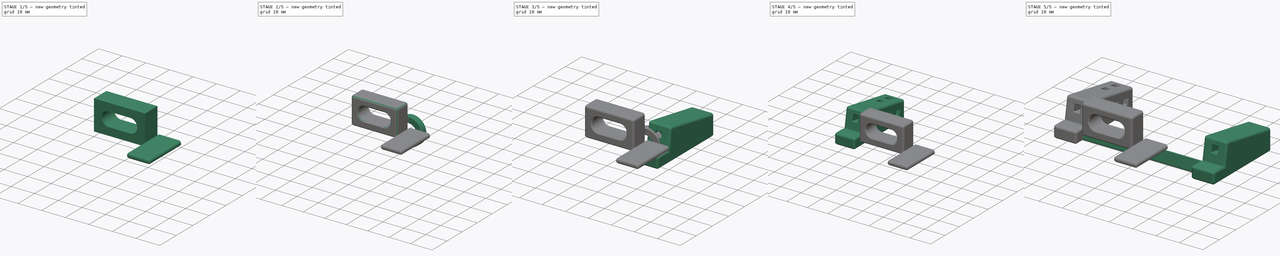
[diagram: build sequence overview — one tinted view per stage of 5, left to right]
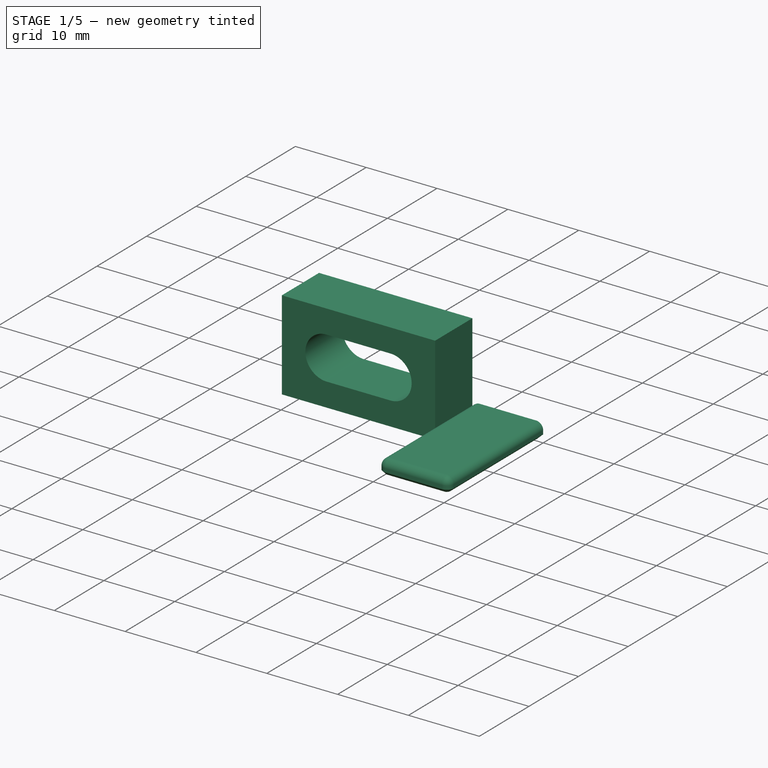
[diagram: stage 1 of 5 — iso view after this stage's code; geometry added in this stage tinted green]
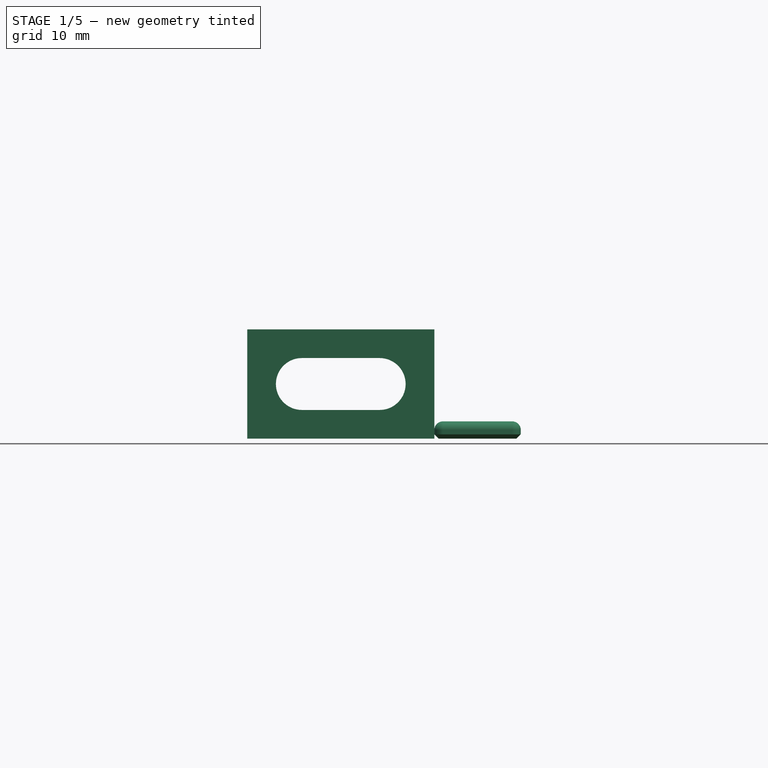
[diagram: stage 1 of 5 — front view after this stage's code; geometry added in this stage tinted green]
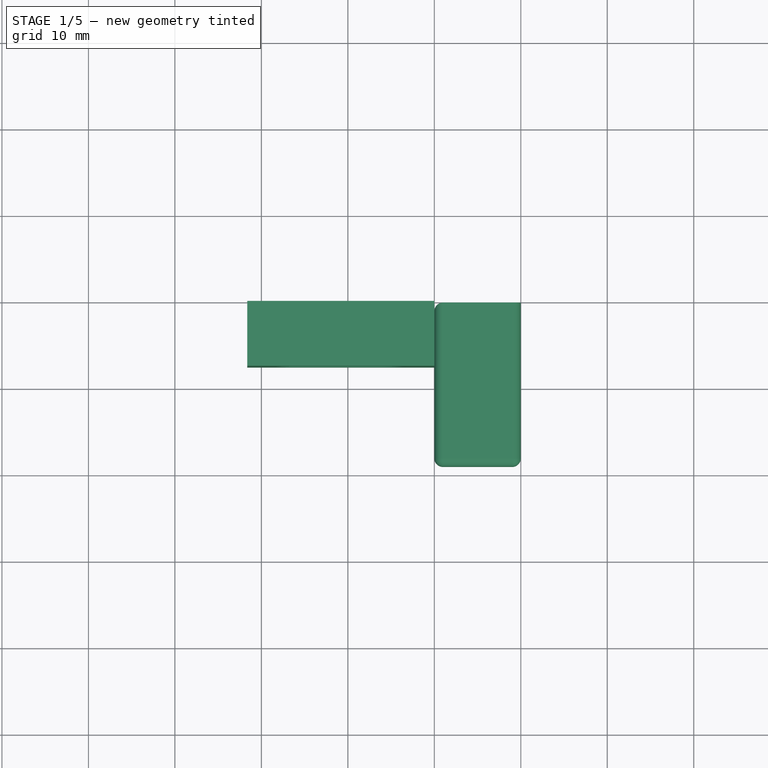
[diagram: stage 1 of 5 — top view after this stage's code; geometry added in this stage tinted green]
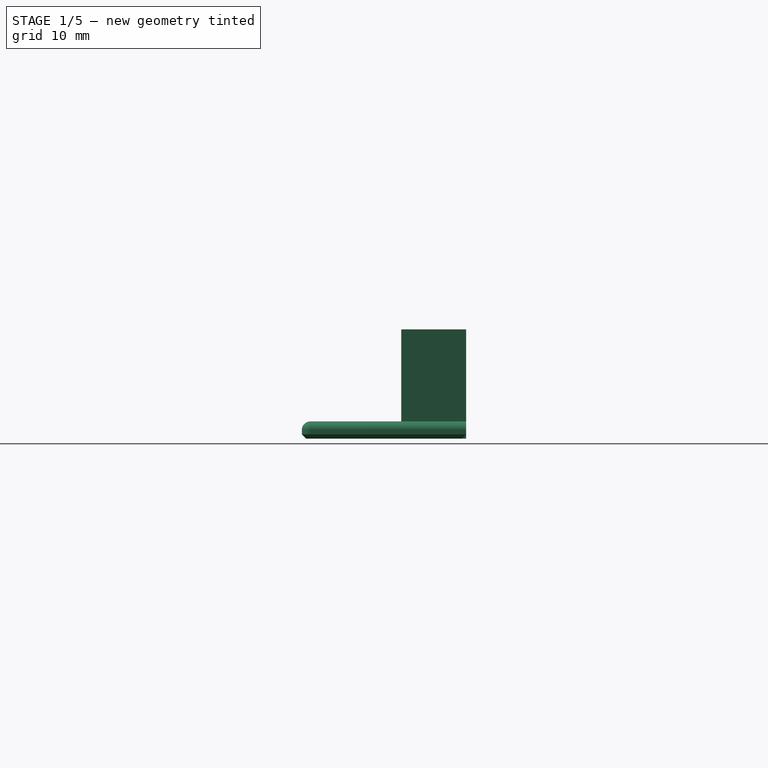
[diagram: stage 1 of 5 — right view after this stage's code; geometry added in this stage tinted green]
FCSTD DOCUMENT  (FreeCAD 1.0R39285 (Git))
Label: n-teller-stand
License: All rights reserved
LicenseURL: https://en.wikipedia.org/wiki/All_rights_reserved
objects: Part::Feature×20, Sketcher::SketchObject×6, PartDesign::Chamfer×6, PartDesign::Body×6, PartDesign::Pad×5, PartDesign::Fillet×4, Part::Cut×2, App::Part×1, PartDesign::Pocket×1, Part::Mirroring×1, PartDesign::FeatureBase×1
note: 91 computed .brp shape members not serialized (recipe doc carries the construction recipe); baked Part::Feature solids carry a one-line shape summary decoded from their .brp

FEATURE [Sketcher::SketchObject] Sketch004
  ArcFitTolerance = 1e-06
  AttachmentSupport = -> [XZ_Plane005]
  FullyConstrained = false
  MakeInternals = false
  MapMode = 5
  Placement = pos=(0,0,0) rot=(1,0,0;1.5708rad)
  sketch-geometry (12):
    g0: LineSegment StartX=0 StartY=0 StartZ=0 EndX=0 EndY=12.6388 EndZ=0
    g1: LineSegment StartX=0 StartY=12.6388 StartZ=0 EndX=-21.6388 EndY=12.6388 EndZ=0
    g2: LineSegment StartX=-21.6388 StartY=12.6388 StartZ=0 EndX=-21.6388 EndY=0 EndZ=0
    g3: LineSegment StartX=-21.6388 StartY=0 StartZ=0 EndX=0 EndY=0 EndZ=0
    g4: ArcOfCircle CenterX=-6.3194 CenterY=6.3194 CenterZ=0 NormalX=0 NormalY=0 NormalZ=1 AngleXU=0 Radius=3 StartAngle=4.71239 EndAngle=7.85398
    g5: ArcOfCircle CenterX=-15.3194 CenterY=6.3194 CenterZ=0 NormalX=0 NormalY=0 NormalZ=1 AngleXU=0 Radius=3 StartAngle=1.5708 EndAngle=4.71239
    g6: LineSegment StartX=-6.3194 StartY=3.3194 StartZ=0 EndX=-15.3194 EndY=3.3194 EndZ=0
    g7: LineSegment StartX=-6.3194 StartY=9.3194 StartZ=0 EndX=-15.3194 EndY=9.3194 EndZ=0
    g8: LineSegment [constr] StartX=-3.3194 StartY=6.3194 StartZ=0 EndX=-18.3194 EndY=6.3194 EndZ=0
    g9: LineSegment [constr] StartX=-21.6388 StartY=0 StartZ=0 EndX=-15.3194 EndY=6.3194 EndZ=0
    g10: LineSegment [constr] StartX=-15.3194 StartY=6.3194 StartZ=0 EndX=-21.6388 EndY=12.6388 EndZ=0
    g11: LineSegment [constr] StartX=-6.3194 StartY=6.3194 StartZ=0 EndX=-9e-16 EndY=0 EndZ=0
  constraints (30):
    c: Coincident(g0,g1)
    c: Coincident(g1,g2)
    c: Coincident(g2,g3)
    c: Coincident(g3,g0)
    c: Vertical(g0)
    c: Vertical(g2)
    c: Horizontal(g1)
    c: Horizontal(g3)
    c: Coincident(g0,g-1)
    c: Tangent(g4,g6) = 1.5708
    c: Tangent(g4,g7) = -1.5708
    c: Tangent(g5,g6) = 1.5708
    c: Tangent(g5,g7) = -1.5708
    c: Equal(g4,g5)
    c: Horizontal(g7)
    c: Distance(g4,g4) = 6
    c: PointOnObject(g8,g4)
    c: PointOnObject(g8,g5)
    c: Horizontal(g8)
    c: PointOnObject(g5,g8)
    c: DistanceX(g8,g8) = 15
    c: Coincident(g9,g2)
    c: Coincident(g9,g5)
    c: Coincident(g10,g5)
    c: Coincident(g10,g1)
    c: Equal(g10,g9)
    c: Angle(g10,g9) = 1.5708
    c: Coincident(g11,g4)
    c: Coincident(g11,g0)
    c: Equal(g11,g9)
FEATURE [PartDesign::Pad] Pad003
  Direction = (0,-1,2e-16)
  Length = 7.5
  Length2 = 10
  Placement = pos=(0,0,0) rot=(1,0,0;1.5708rad)
  Profile = -> Sketch004
  ReferenceAxis = -> Sketch004 [N_Axis]
  Refine = true
  Suppressed = false
  Type = 0
FEATURE [PartDesign::Body] Body004  label="usb-c-socket"
  AllowCompound = false
  Group = -> [Sketch004,Pad003,Fillet002,Chamfer003,Chamfer004]
  Origin = -> Origin005
  Placement = pos=(25.42,22.43,-4.7) rot=(0,0,1;0rad)
  Tip = -> Chamfer004
FEATURE [Sketcher::SketchObject] Sketch005
  ArcFitTolerance = 1e-06
  AttachmentSupport = -> [YZ_Plane006]
  FullyConstrained = true
  MakeInternals = false
  MapMode = 5
  Placement = pos=(0,0,0) rot=(0.57735,0.57735,0.57735;2.0944rad)
  sketch-geometry (4):
    g0: LineSegment StartX=0 StartY=0 StartZ=0 EndX=0 EndY=2 EndZ=0
    g1: LineSegment StartX=0 StartY=2 StartZ=0 EndX=-19 EndY=2 EndZ=0
    g2: LineSegment StartX=-19 StartY=2 StartZ=0 EndX=-19 EndY=0 EndZ=0
    g3: LineSegment StartX=-19 StartY=0 StartZ=0 EndX=0 EndY=0 EndZ=0
  constraints (11):
    c: Coincident(g0,g1)
    c: Coincident(g1,g2)
    c: Coincident(g2,g3)
    c: Coincident(g3,g0)
    c: Vertical(g0)
    c: Vertical(g2)
    c: Horizontal(g1)
    c: Horizontal(g3)
    c: Coincident(g0,g-1)
    c: DistanceY(g2,g2) = 2
    c: DistanceX(g1,g1) = 19
FEATURE [PartDesign::Pad] Pad004
  Direction = (1,0,0)
  Length = 10
  Length2 = 10
  Placement = pos=(0,0,0) rot=(1,1,1;2.0944rad)
  Profile = -> Sketch005
  ReferenceAxis = -> Sketch005 [N_Axis]
  Refine = true
  Suppressed = false
  Type = 0
FEATURE [PartDesign::Fillet] Fillet003
  Base = -> Pad004 [Edge5,Edge9,Edge6,Edge7,Edge3,Edge10]
  BaseFeature = -> Pad004
  Placement = pos=(0,0,0) rot=(1,1,1;2.0944rad)
  Radius = 1
  Refine = true
  SupportTransform = false
  Suppressed = false
  UseAllEdges = false
FEATURE [PartDesign::Chamfer] Chamfer005
  Angle = 45
  Base = -> Fillet003 [Edge10]
  BaseFeature = -> Fillet003
  ChamferType = 0
  FlipDirection = false
  Placement = pos=(0,0,0) rot=(1,1,1;2.0944rad)
  Refine = true
  Size = 0.5
  Size2 = 1
  SupportTransform = false
  Suppressed = false
  UseAllEdges = false
FEATURE [PartDesign::Body] Body005  label="usb-c-socketbride"
  AllowCompound = false
  Group = -> [Sketch005,Pad004,Fillet003,Chamfer005]
  Origin = -> Origin006
  Placement = pos=(3.8,17.5,-4.7) rot=(0,0,1;0rad)
  Tip = -> Chamfer005
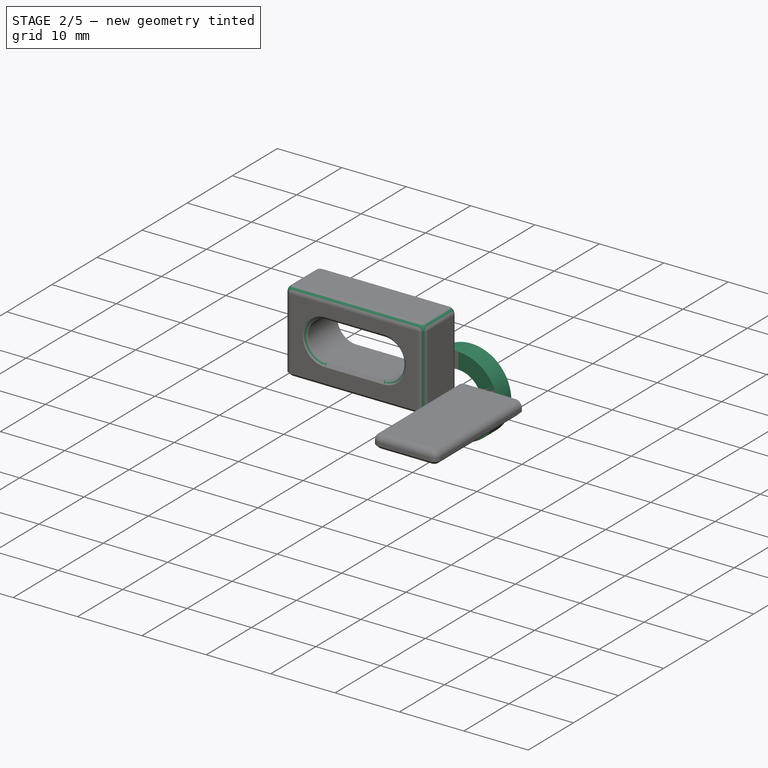
[diagram: stage 2 of 5 — iso view after this stage's code; geometry added in this stage tinted green]
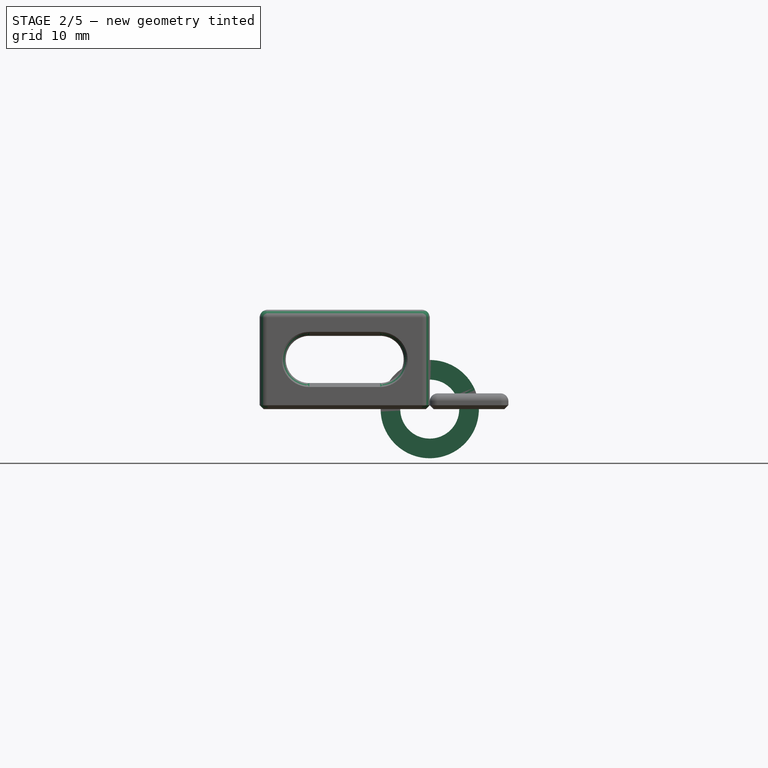
[diagram: stage 2 of 5 — front view after this stage's code; geometry added in this stage tinted green]
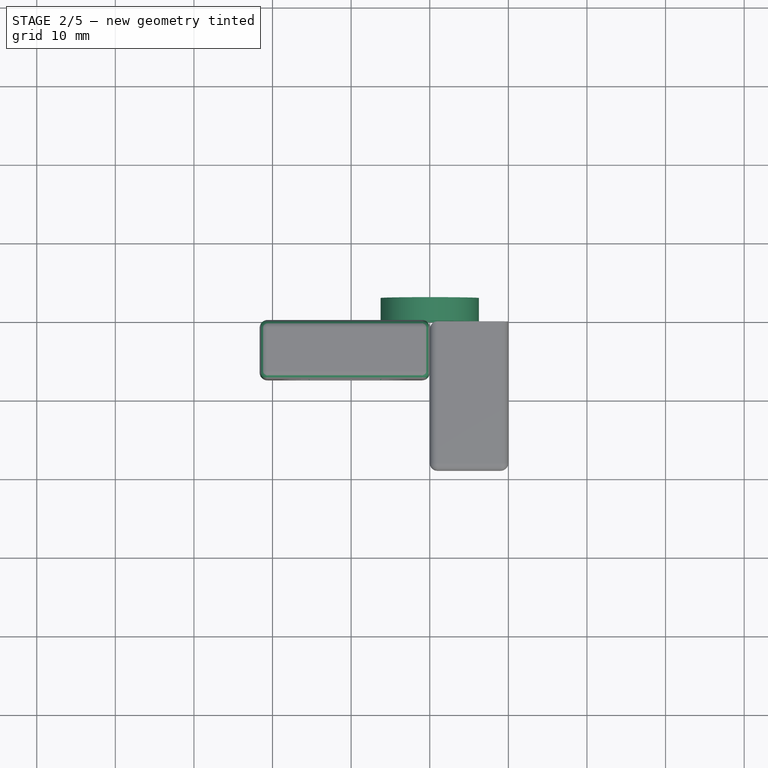
[diagram: stage 2 of 5 — top view after this stage's code; geometry added in this stage tinted green]
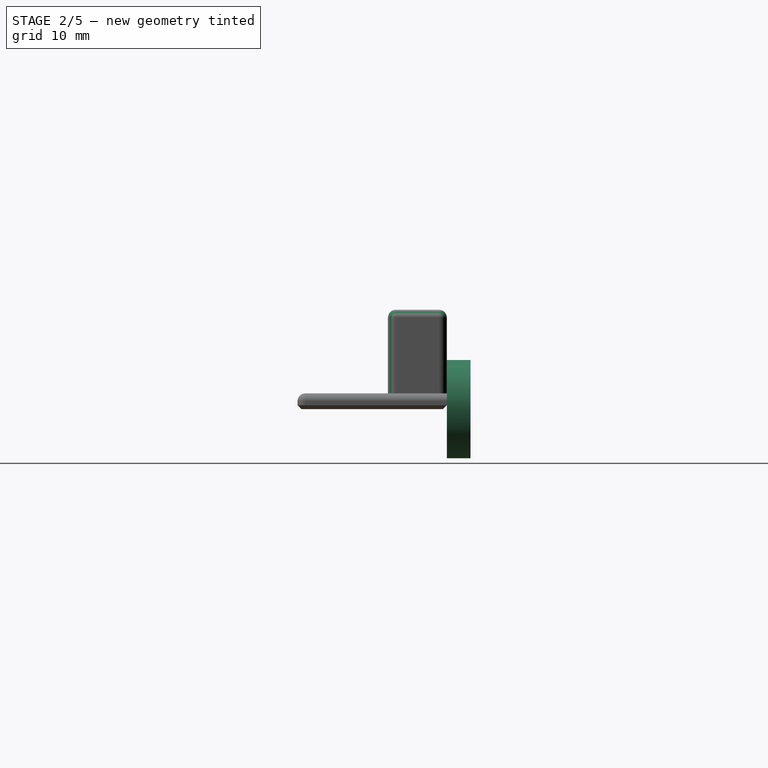
[diagram: stage 2 of 5 — right view after this stage's code; geometry added in this stage tinted green]
FEATURE [PartDesign::Body] Body001  label="Footbridge"
  AllowCompound = false
  Group = -> [Sketch002,Pad001,Chamfer002,Fillet001]
  Origin = -> Origin002
  Tip = -> Fillet001
FEATURE [Sketcher::SketchObject] Sketch003
  ArcFitTolerance = 1e-06
  AttachmentSupport = -> [XZ_Plane003]
  FullyConstrained = true
  MakeInternals = false
  MapMode = 5
  Placement = pos=(0,0,0) rot=(1,0,0;1.5708rad)
  sketch-geometry (3):
    g0: Circle CenterX=0 CenterY=0 CenterZ=0 NormalX=0 NormalY=0 NormalZ=1 AngleXU=0 Radius=3.75
    g1: Circle CenterX=0 CenterY=0 CenterZ=0 NormalX=0 NormalY=0 NormalZ=1 AngleXU=0 Radius=6.25
    g2: LineSegment [constr] StartX=6.25 StartY=0 StartZ=0 EndX=3.75 EndY=0 EndZ=0
  constraints (8):
    c: Coincident(g1,g0)
    c: PointOnObject(g2,g1)
    c: PointOnObject(g2,g0)
    c: Horizontal(g2)
    c: PointOnObject(g0,g2)
    c: DistanceX(g2,g2) = 2.5
    c: Coincident(g0,g-1)
    c: Diameter(g0) = 7.5
FEATURE [PartDesign::Pad] Pad002
  Direction = (0,-1,2e-16)
  Length = 3
  Length2 = 10
  Placement = pos=(0,0,0) rot=(1,0,0;1.5708rad)
  Profile = -> Sketch003
  ReferenceAxis = -> Sketch003 [N_Axis]
  Refine = true
  Reversed = true
  Suppressed = false
  Type = 0
FEATURE [PartDesign::Fillet] Fillet002
  Base = -> Pad003 [Edge9,Edge6,Edge7,Edge5,Edge10,Edge3,Edge2,Edge4]
  BaseFeature = -> Pad003
  Placement = pos=(0,0,0) rot=(1,0,0;1.5708rad)
  Radius = 1
  Refine = true
  SupportTransform = false
  Suppressed = false
  UseAllEdges = false
FEATURE [PartDesign::Chamfer] Chamfer003
  Angle = 45
  Base = -> Fillet002 [Edge8]
  BaseFeature = -> Fillet002
  ChamferType = 0
  FlipDirection = false
  Placement = pos=(0,0,0) rot=(1,0,0;1.5708rad)
  Refine = true
  Size = 0.5
  Size2 = 1
  SupportTransform = false
  Suppressed = false
  UseAllEdges = false
FEATURE [PartDesign::Chamfer] Chamfer004
  Angle = 45
  Base = -> Chamfer003 [Edge27,Edge46]
  BaseFeature = -> Chamfer003
  ChamferType = 0
  FlipDirection = false
  Placement = pos=(0,0,0) rot=(1,0,0;1.5708rad)
  Refine = true
  Size = 0.5
  Size2 = 1
  SupportTransform = false
  Suppressed = false
  UseAllEdges = false
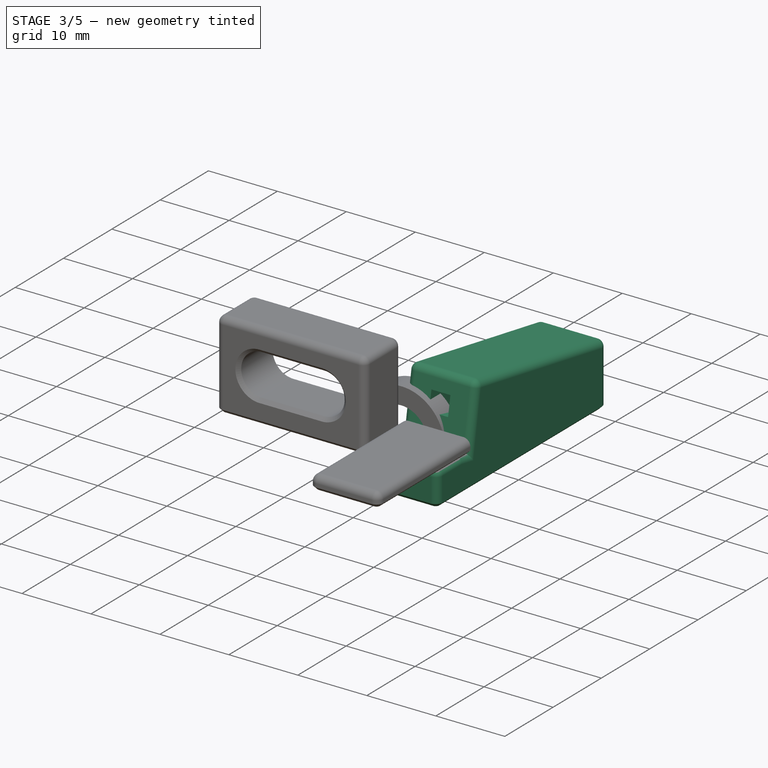
[diagram: stage 3 of 5 — iso view after this stage's code; geometry added in this stage tinted green]
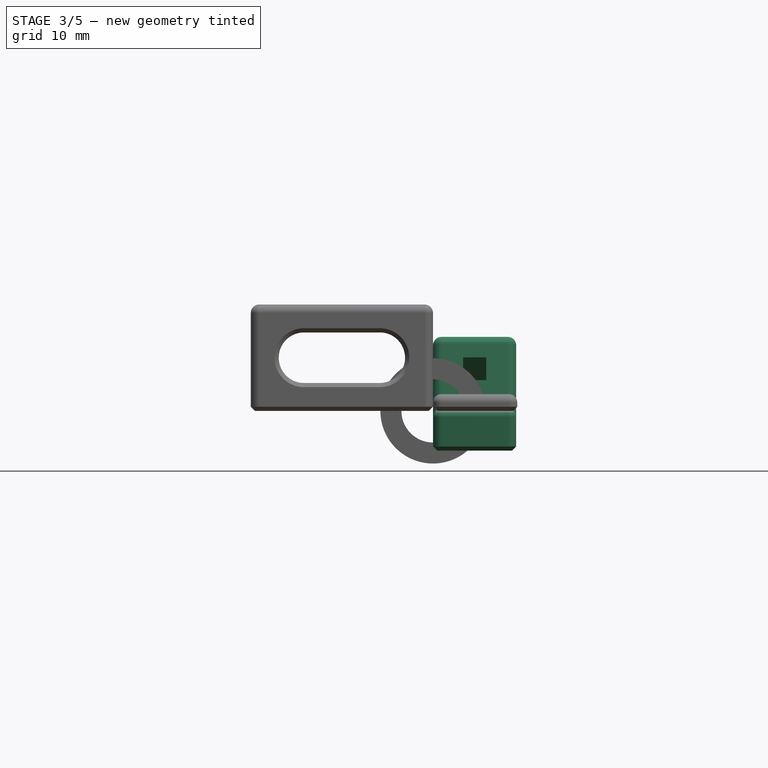
[diagram: stage 3 of 5 — front view after this stage's code; geometry added in this stage tinted green]
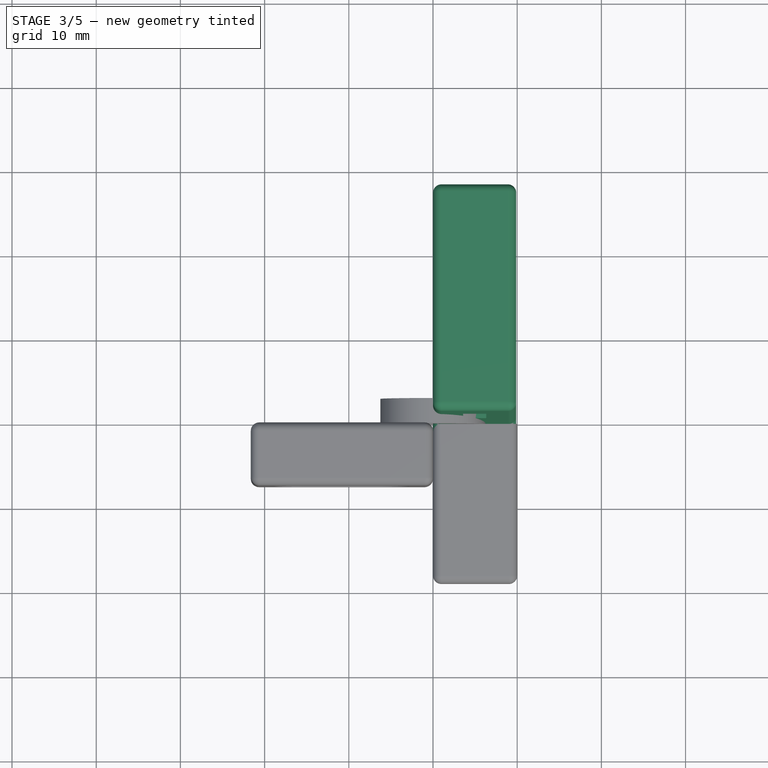
[diagram: stage 3 of 5 — top view after this stage's code; geometry added in this stage tinted green]
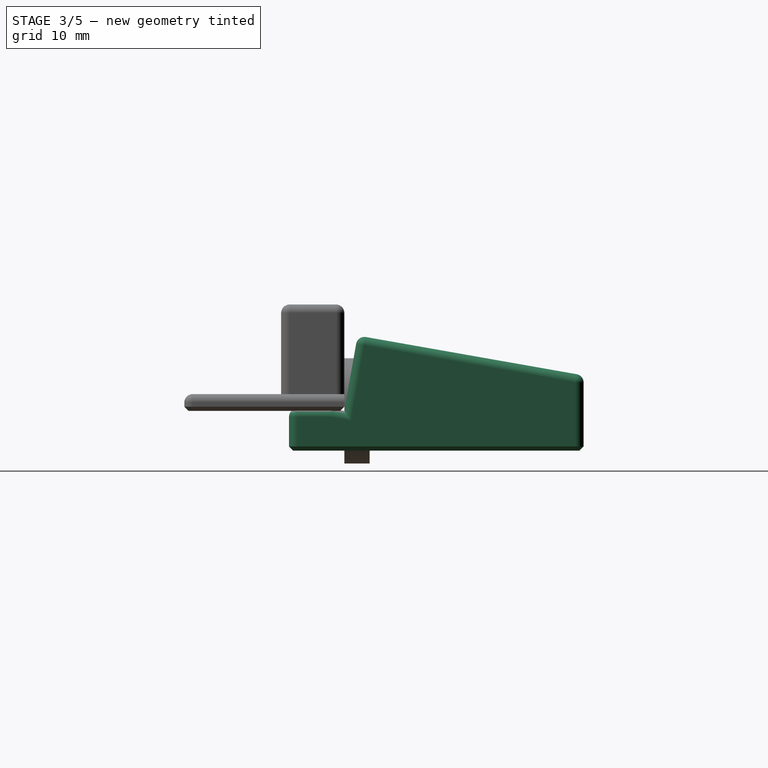
[diagram: stage 3 of 5 — right view after this stage's code; geometry added in this stage tinted green]
FEATURE [Part::Feature] Part__Feature  label="SEVE_SEG_036INX4"
  Placement = pos=(-6.8,-6.98,9.095) rot=(0,0,1;0rad)
  shape: bbox 30 x 14 x 11.3 mm, 214 faces (baked)
FEATURE [Part::Feature] Part__Feature001  label="CP_Radial_D8.0mm_P3.50mm"
  Placement = pos=(7.90554,-14.365,-0.085) rot=(1,0,0;3.14159rad)
  shape: bbox 9.886 x 10.23 x 10 mm, 54 faces (baked)
FEATURE [Part::Feature] Part__Feature002  label="D_SMA"
  Placement = pos=(19.05,-17.78,-0.085) rot=(1,0,0;3.14159rad)
  shape: bbox 5 x 2.7 x 2.22 mm, 41 faces (baked)
FEATURE [Part::Feature] Part__Feature003  label="R_0805_2012Metric"
  Placement = pos=(24.765,0,-0.085) rot=(0.707107,0.707107,0;3.14159rad)
  shape: bbox 1.2 x 2 x 0.45 mm, 26 faces (baked)
FEATURE [Part::Feature] Part__Feature004  label="WEMOS_D1_mini_light"
  Placement = pos=(-22.86,11.43,-1.735) rot=(0.707107,-0.707107,0;3.14159rad)
  shape: bbox 34.5 x 26 x 7.95 mm, 49 faces (baked)
FEATURE [Part::Feature] Part__Feature005  label="PinSocket_1x08_P2.54mm_Vertical"
  Placement = pos=(-22.86,11.43,-0.085) rot=(0.707107,-0.707107,0;3.14159rad)
  shape: bbox 20.32 x 2.54 x 11.6 mm, 218 faces (baked)
FEATURE [Part::Feature] Part__Feature006  label="PinSocket_1x08_P2.54mm_Vertical001"
  Placement = pos=(-22.86,-11.43,-0.085) rot=(0.707107,-0.707107,0;3.14159rad)
  shape: bbox 20.32 x 2.54 x 11.6 mm, 218 faces (baked)
FEATURE [Part::Feature] Part__Feature007  label="PinHeader_1x08_P2.54mm_Vertical"
  Placement = pos=(-5.08,11.43,-11.185) rot=(0,0,-1;1.5708rad)
  shape: bbox 20.32 x 2.54 x 11.54 mm, 196 faces (baked)
FEATURE [Part::Feature] Part__Feature008  label="PinHeader_1x08_P2.54mm_Vertical001"
  Placement = pos=(-5.08,-11.43,-11.185) rot=(0,0,-1;1.5708rad)
  shape: bbox 20.32 x 2.54 x 11.54 mm, 196 faces (baked)
FEATURE [Part::Feature] Part__Feature009  label="C_0805_2012Metric"
  Placement = pos=(16.51,-9.525,-0.085) rot=(0,1,0;3.14159rad)
  shape: bbox 2 x 1.25 x 1.25 mm, 28 faces (baked)
FEATURE [Part::Feature] Part__Feature010  label="C_0805_2012Metric001"
  Placement = pos=(16.51,10.16,-0.085) rot=(0,1,0;3.14159rad)
  shape: bbox 2 x 1.25 x 1.25 mm, 28 faces (baked)
FEATURE [Part::Feature] Part__Feature011  label="SOIC-24W_7.5x15.4mm_P1.27mm"
  Placement = pos=(16.51,0,-0.085) rot=(1,0,0;3.14159rad)
  shape: bbox 10.3 x 15.4 x 2.75 mm, 396 faces (baked)
FEATURE [Part::Feature] Part__Feature012  label="SOIC-14_3.9x8.7mm_P1.27mm"
  Placement = pos=(16.51,16.51,-0.085) rot=(1,0,0;3.14159rad)
  shape: bbox 6 x 8.7 x 1.75 mm, 246 faces (baked)
FEATURE [Part::Feature] Part__Feature013  label="Fuse_1206_3216Metric"
  Placement = pos=(1.27,-17.78,-0.085) rot=(1,0,0;3.14159rad)
  shape: bbox 3.2 x 1.6 x 0.55 mm, 26 faces (baked)
FEATURE [Part::Feature] Part__Feature014  label="n-teller_copper"
  shape: bbox 57.92 x 44.72 x 1.58 mm, 3522 faces, 72 solids (baked)
FEATURE [Part::Feature] Part__Feature015  label="n-teller_pad"
  shape: bbox 64.96 x 41.96 x 1.59 mm, 1594 faces, 260 solids (baked)
FEATURE [Part::Feature] Part__Feature016  label="n-teller_via"
  shape: bbox 53.11 x 43.58 x 1.58 mm, 279 faces, 93 solids (baked)
FEATURE [Part::Feature] Part__Feature017  label="n-teller_silkscreen"
  shape: bbox 62.38 x 43.36 x 1.66 mm, 388 faces, 0 solids (baked)
FEATURE [Part::Feature] Part__Feature018  label="n-teller_soldermask"
  shape: bbox 68.58 x 45.72 x 1.61 mm, 2 faces, 0 solids (baked)
FEATURE [Part::Feature] Part__Feature019  label="n-teller_PCB"
  shape: bbox 68.58 x 45.72 x 1.51 mm, 76 faces (baked)
FEATURE [App::Part] n_teller_1  label="n-teller 1"
  Group = -> [Part__Feature,Part__Feature001,Part__Feature002,Part__Feature003,Part__Feature004,Part__Feature005,Part__Feature006,Part__Feature007,Part__Feature008,Part__Feature009,Part__Feature010,Part__Feature011,Part__Feature012,Part__Feature013,Part__Feature014,Part__Feature015,Part__Feature016,Part__Feature017,Part__Feature018,Part__Feature019]
  Origin = -> Origin
  Placement = pos=(0,3.96,22.52) rot=(-1,0,0;4.88692rad)
FEATURE [Sketcher::SketchObject] Sketch
  ArcFitTolerance = 1e-06
  AttachmentSupport = -> [YZ_Plane001]
  FullyConstrained = true
  MakeInternals = false
  MapMode = 5
  Placement = pos=(0,0,0) rot=(0.57735,0.57735,0.57735;2.0944rad)
  sketch-geometry (9):
    g0: LineSegment StartX=1.57769 StartY=8.94753 StartZ=0 EndX=0.883098 EndY=5.0083 EndZ=0
    g1: LineSegment StartX=0.883098 StartY=5.0083 StartZ=0 EndX=0 EndY=0 EndZ=0
    g2: LineSegment [constr] StartX=0.883098 StartY=5.0083 StartZ=0 EndX=-0.61336 EndY=5.27216 EndZ=0
    g3: LineSegment StartX=0 StartY=0 StartZ=0 EndX=-1.57569 EndY=0.277837 EndZ=0
    g4: LineSegment StartX=-1.57569 StartY=0.277837 StartZ=0 EndX=-6.57569 EndY=0.277837 EndZ=0
    g5: LineSegment StartX=-6.57569 StartY=0.277837 StartZ=0 EndX=-6.57569 EndY=-4.72216 EndZ=0
    g6: LineSegment StartX=-6.57569 StartY=-4.72216 StartZ=0 EndX=28.4243 EndY=-4.72216 EndZ=0
    g7: LineSegment StartX=1.57769 StartY=8.94753 StartZ=0 EndX=28.4243 EndY=4.21374 EndZ=0
    g8: LineSegment StartX=28.4243 StartY=4.21374 StartZ=0 EndX=28.4243 EndY=-4.72216 EndZ=0
  constraints (26):
    c: Coincident(g1,g0)
    c: Parallel(g0,g1)
    c: Coincident(g2,g0)
    c: DistanceX(g2) = -0.61336
    c: DistanceY(g2) = 5.27216
    c: Angle(g2,g-1) = 0.174533
    c: Angle(g2,g1) = 1.5708
    c: Coincident(g1,g-1)
    c: Distance(g3) = 1.6
    c: Coincident(g3,g1)
    c: Angle(g1,g3) = 1.5708
    c: Coincident(g4,g3)
    c: Horizontal(g4)
    c: DistanceX(g4,g4) = 5
    c: Distance(g5) = 5
    c: Coincident(g5,g4)
    c: Vertical(g5)
    c: Distance(g6) = 35
    c: Coincident(g6,g5)
    c: Horizontal(g6)
    c: Coincident(g7,g0)
    c: Angle(g0,g7) = 1.5708
    c: Coincident(g8,g7)
    c: Coincident(g8,g6)
    c: Vertical(g8)
    c: Distance(g0) = 4
FEATURE [PartDesign::Pad] Pad
  Direction = (1,0,0)
  Length = 9.88
  Length2 = 10
  Placement = pos=(0,0,0) rot=(1,1,1;2.0944rad)
  Profile = -> Sketch
  ReferenceAxis = -> Sketch [N_Axis]
  Refine = true
  Suppressed = false
  Type = 0
FEATURE [Sketcher::SketchObject] Sketch001
  ArcFitTolerance = 1e-06
  AttachmentSupport = -> [Pad]
  FullyConstrained = true
  MakeInternals = false
  MapMode = 5
  Placement = pos=(0,-1e-16,0) rot=(0.540716,0.540716,-0.6444;1.99673rad)
  sketch-geometry (7):
    g0: LineSegment StartX=-6.4625 StartY=6.32171 StartZ=0 EndX=-6.4625 EndY=3.57171 EndZ=0
    g1: LineSegment StartX=-6.4625 StartY=3.57171 StartZ=0 EndX=-3.7125 EndY=3.57171 EndZ=0
    g2: LineSegment StartX=-3.7125 StartY=3.57171 StartZ=0 EndX=-3.7125 EndY=6.32171 EndZ=0
    g3: LineSegment StartX=-3.7125 StartY=6.32171 StartZ=0 EndX=-6.4625 EndY=6.32171 EndZ=0
    g4: Circle [constr] CenterX=-5.0875 CenterY=4.94671 CenterZ=0 NormalX=0 NormalY=0 NormalZ=1 AngleXU=0 Radius=1.6
    g5: LineSegment [constr] StartX=-6.4625 StartY=3.57171 StartZ=0 EndX=-3.7125 EndY=6.32171 EndZ=0
    g6: LineSegment [constr] StartX=-6.4625 StartY=6.32171 StartZ=0 EndX=-3.7125 EndY=3.57171 EndZ=0
  constraints (19):
    c: Coincident(g0,g1)
    c: Coincident(g1,g2)
    c: Coincident(g2,g3)
    c: Coincident(g3,g0)
    c: Vertical(g0)
    c: Vertical(g2)
    c: Horizontal(g1)
    c: Horizontal(g3)
    c: Diameter(g4) = 3.2
    c: DistanceX(g4) = -5.0875
    c: DistanceY(g4) = 4.94671
    c: Equal(g1,g0)
    c: Coincident(g5,g0)
    c: Coincident(g5,g2)
    c: Coincident(g6,g0)
    c: Coincident(g6,g1)
    c: PointOnObject(g4,g5)
    c: PointOnObject(g4,g6)
    c: Distance(g1) = 2.75
FEATURE [PartDesign::Pocket] Pocket
  BaseFeature = -> Pad
  Direction = (2e-16,0.984808,-0.173648)
  Length = 20
  Length2 = 5
  Placement = pos=(0,0,0) rot=(1,1,1;2.0944rad)
  Profile = -> Sketch001
  ReferenceAxis = -> Sketch001 [N_Axis]
  Refine = true
  Suppressed = false
  Type = 0
FEATURE [PartDesign::Fillet] Fillet
  Base = -> Pocket [Edge14,Edge12,Edge13,Edge5,Edge18,Edge22,Edge7,Edge6,Edge23,Edge21,Edge4,Edge3,Edge19,Edge15,Edge17]
  BaseFeature = -> Pocket
  Placement = pos=(0,0,0) rot=(1,1,1;2.0944rad)
  Radius = 1
  Refine = true
  SupportTransform = false
  Suppressed = false
  UseAllEdges = false
FEATURE [PartDesign::Chamfer] Chamfer
  Angle = 45
  Base = -> Fillet [Edge36]
  BaseFeature = -> Fillet
  ChamferType = 0
  FlipDirection = false
  Placement = pos=(0,0,0) rot=(1,1,1;2.0944rad)
  Refine = true
  Size = 0.5
  Size2 = 1
  SupportTransform = false
  Suppressed = false
  UseAllEdges = false
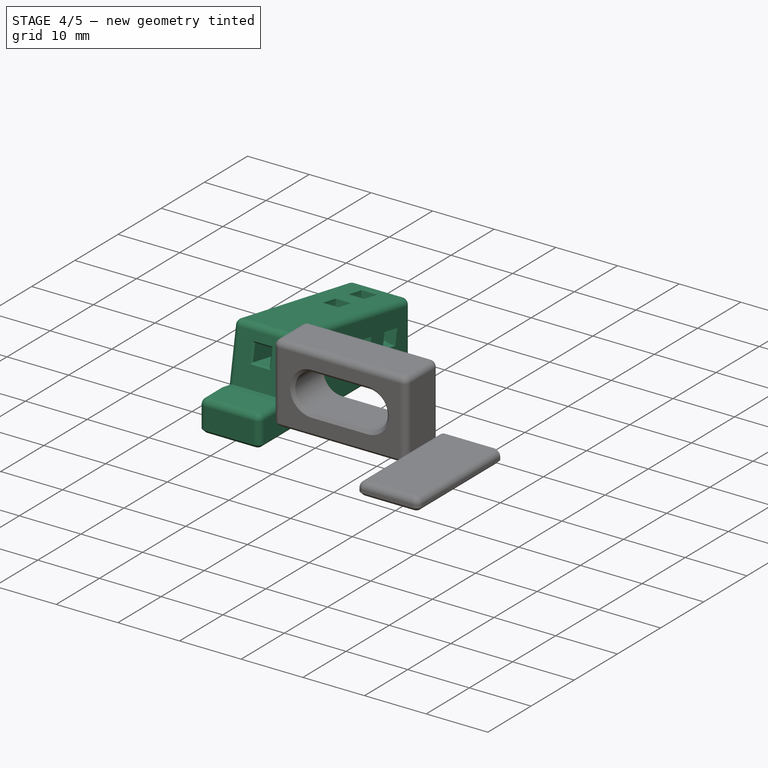
[diagram: stage 4 of 5 — iso view after this stage's code; geometry added in this stage tinted green]
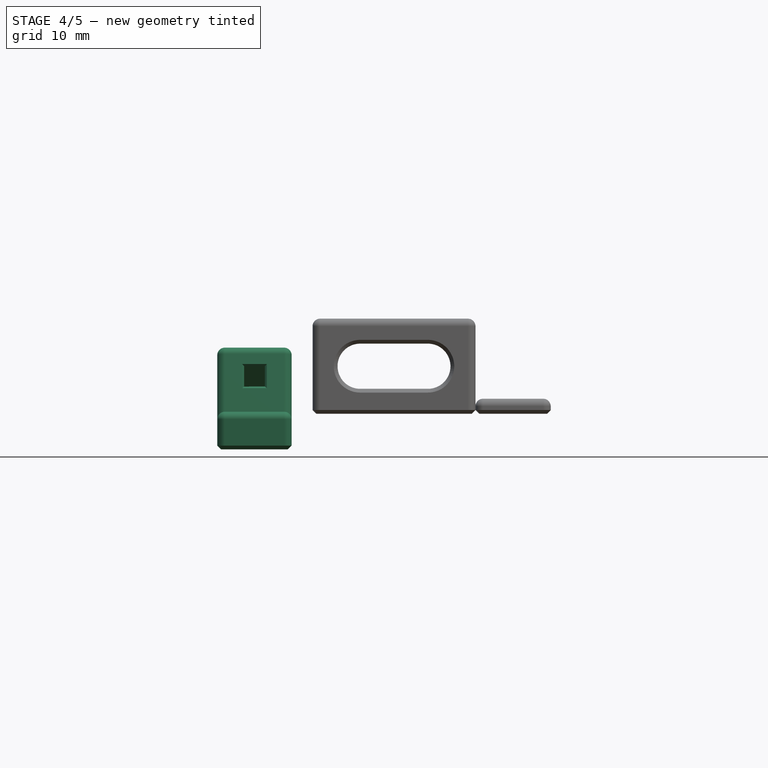
[diagram: stage 4 of 5 — front view after this stage's code; geometry added in this stage tinted green]
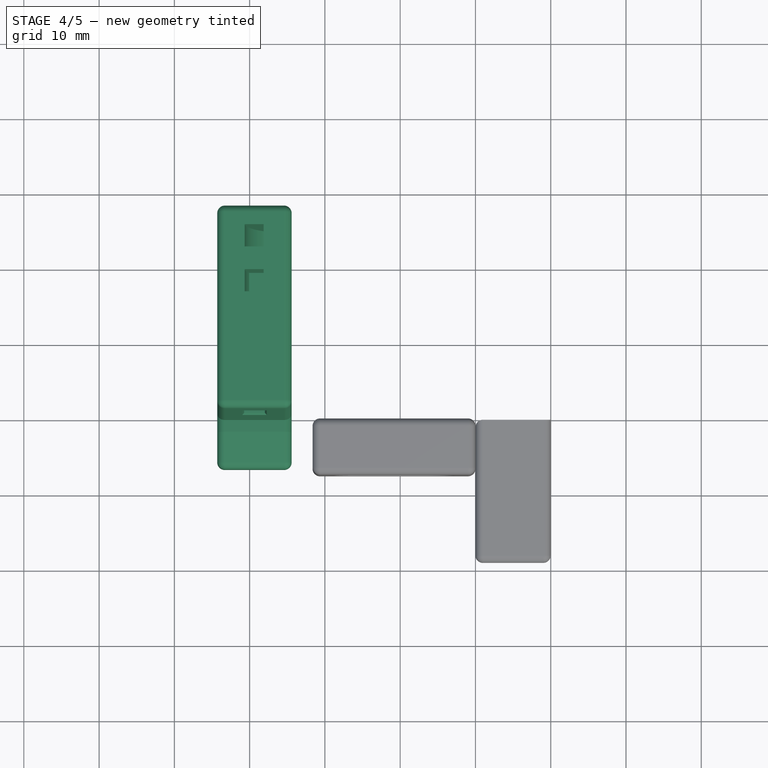
[diagram: stage 4 of 5 — top view after this stage's code; geometry added in this stage tinted green]
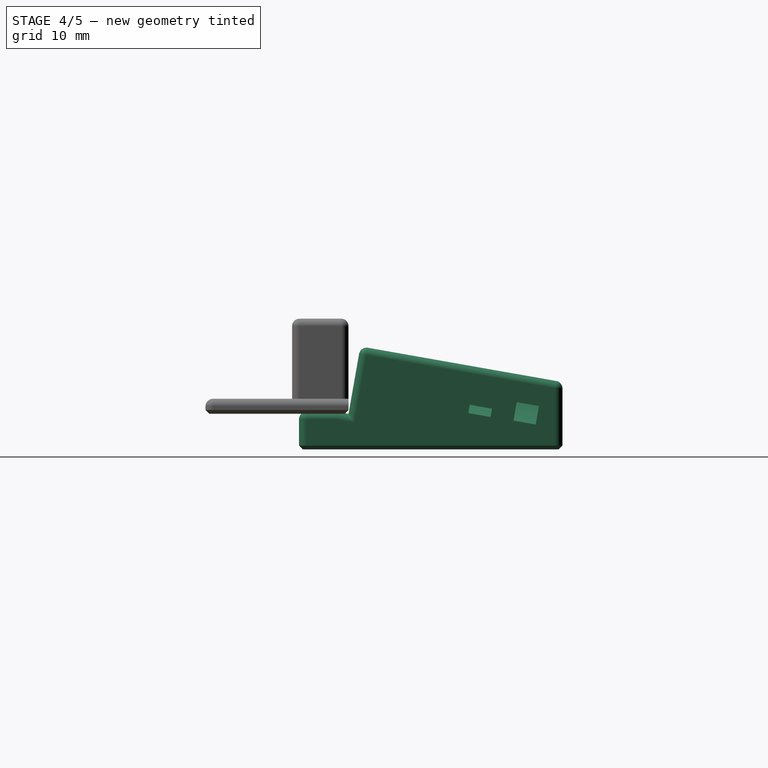
[diagram: stage 4 of 5 — right view after this stage's code; geometry added in this stage tinted green]
FEATURE [PartDesign::Chamfer] Chamfer001
  Angle = 45
  Base = -> Chamfer [Edge59,Edge58,Edge61,Edge60]
  BaseFeature = -> Chamfer
  ChamferType = 0
  FlipDirection = false
  Placement = pos=(0,0,0) rot=(1,1,1;2.0944rad)
  Refine = true
  Size = 0.25
  Size2 = 1
  SupportTransform = false
  Suppressed = false
  UseAllEdges = false
FEATURE [PartDesign::Body] Body002  label="ty-rap-cutter1"
  AllowCompound = false
  Group = -> [Sketch003,Pad002]
  Origin = -> Origin003
  Placement = pos=(-24.4,17,6.25) rot=(1,0,0;-0.174533rad)
  Tip = -> Pad002
FEATURE [PartDesign::FeatureBase] Clone
  BaseFeature = -> Body002
  Placement = pos=(-24.4,17,6.25) rot=(1,0,0;-0.174533rad)
  Suppressed = false
FEATURE [PartDesign::Body] Body003  label="ty-rap-cutter2"
  AllowCompound = false
  Group = -> [Clone]
  Origin = -> Origin004
  Placement = pos=(0,6,-1) rot=(0,0,1;0rad)
  Tip = -> Clone
FEATURE [Part::Cut] Cut
  Base = -> Body
  Refine = true
  Tool = -> Body002
FEATURE [Part::Cut] Cut001  label="Foot-w-cuts"
  Base = -> Cut
  Refine = true
  Tool = -> Body003
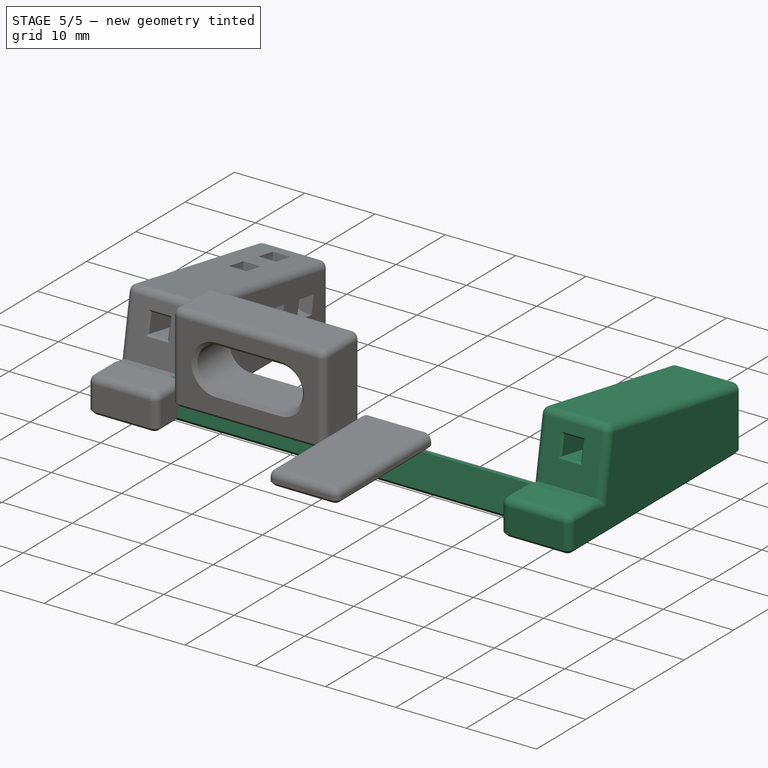
[diagram: stage 5 of 5 — iso view after this stage's code; geometry added in this stage tinted green]
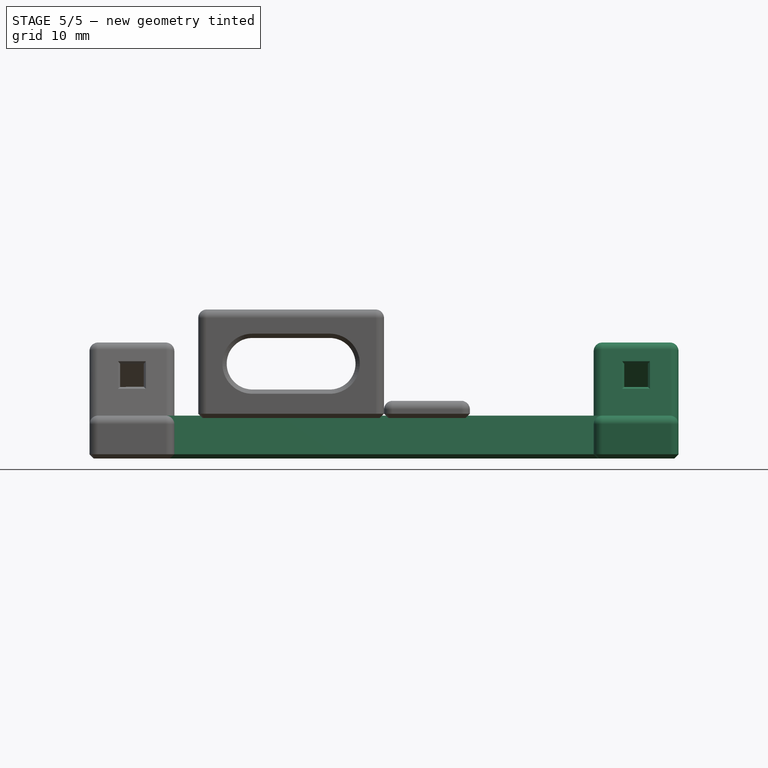
[diagram: stage 5 of 5 — front view after this stage's code; geometry added in this stage tinted green]
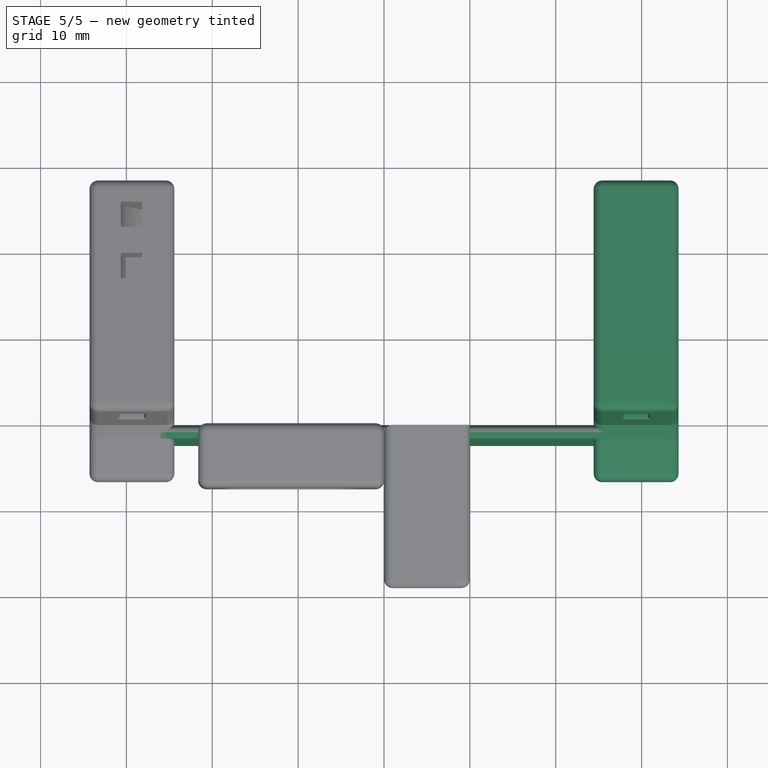
[diagram: stage 5 of 5 — top view after this stage's code; geometry added in this stage tinted green]
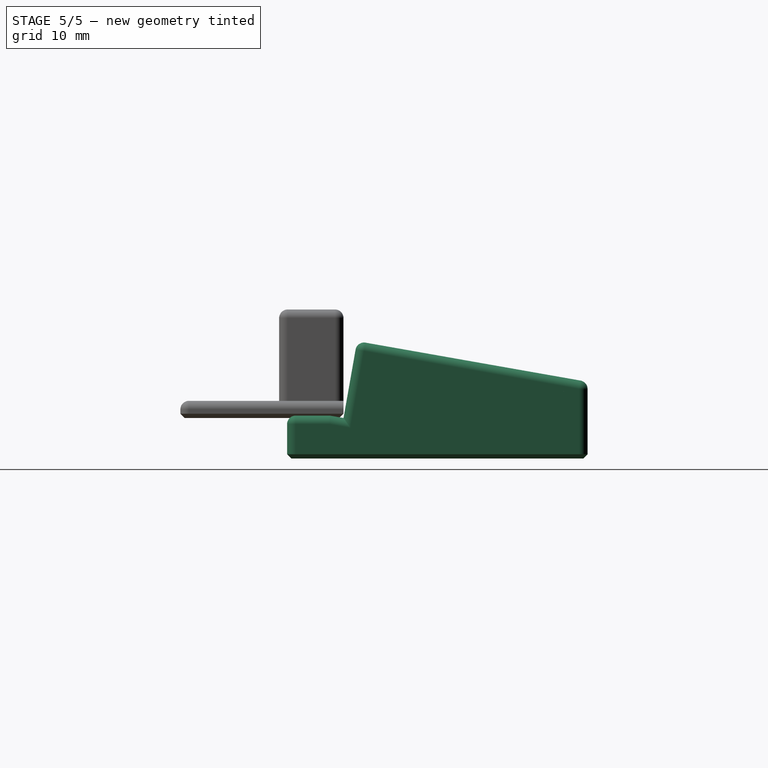
[diagram: stage 5 of 5 — right view after this stage's code; geometry added in this stage tinted green]
FEATURE [Sketcher::SketchObject] Sketch002
  ArcFitTolerance = 1e-06
  AttachmentSupport = -> [YZ_Plane002]
  FullyConstrained = true
  MakeInternals = false
  MapMode = 5
  Placement = pos=(0,0,0) rot=(0.57735,0.57735,0.57735;2.0944rad)
  sketch-geometry (4):
    g0: LineSegment StartX=0 StartY=0 StartZ=0 EndX=-1.57569 EndY=0.277837 EndZ=0
    g1: LineSegment StartX=-1.57569 StartY=0.277837 StartZ=0 EndX=-2.45695 EndY=-4.72 EndZ=0
    g2: LineSegment StartX=-2.45695 StartY=-4.72 StartZ=0 EndX=0 EndY=-4.72 EndZ=0
    g3: LineSegment StartX=0 StartY=-4.72 StartZ=0 EndX=0 EndY=0 EndZ=0
  constraints (11):
    c: Coincident(g0,g-1)
    c: Distance(g0) = 1.6
    c: Angle(g0,g-1) = 0.174533
    c: Coincident(g1,g0)
    c: Coincident(g2,g1)
    c: PointOnObject(g2,g-2)
    c: Horizontal(g2)
    c: DistanceY(g2) = -4.72
    c: Angle(g1,g0) = 1.5708
    c: Coincident(g3,g2)
    c: Coincident(g3,g0)
FEATURE [PartDesign::Pad] Pad001
  Direction = (1,0,0)
  Length = 52
  Length2 = 10
  Midplane = true
  Placement = pos=(0,0,0) rot=(1,1,1;2.0944rad)
  Profile = -> Sketch002
  ReferenceAxis = -> Sketch002 [N_Axis]
  Refine = true
  Suppressed = false
  Type = 0
FEATURE [PartDesign::Body] Body  label="Foot"
  AllowCompound = false
  Group = -> [Sketch,Pad,Sketch001,Pocket,Fillet,Chamfer,Chamfer001]
  Origin = -> Origin001
  Placement = pos=(-34.3,0,0) rot=(0,0,1;0rad)
  Tip = -> Chamfer001
FEATURE [Part::Mirroring] Part__Mirroring  label="Foot-mirror"
  Base = (0,0,0)
  Normal = (1,0,0)
  Source = -> Body
FEATURE [PartDesign::Chamfer] Chamfer002
  Angle = 45
  Base = -> Pad001 [Face3]
  BaseFeature = -> Pad001
  ChamferType = 0
  FlipDirection = false
  Placement = pos=(0,0,0) rot=(1,1,1;2.0944rad)
  Refine = true
  Size = 0.5
  Size2 = 1
  SupportTransform = false
  Suppressed = false
  UseAllEdges = false
FEATURE [PartDesign::Fillet] Fillet001
  Base = -> Chamfer002 [Edge13]
  BaseFeature = -> Chamfer002
  Placement = pos=(0,0,0) rot=(1,1,1;2.0944rad)
  Radius = 1
  Refine = true
  SupportTransform = false
  Suppressed = false
  UseAllEdges = false
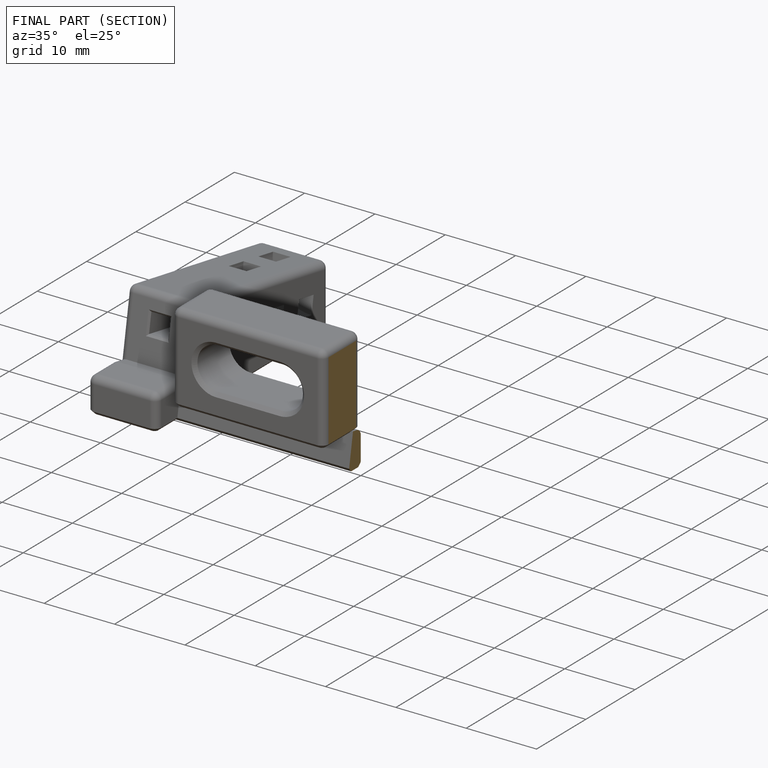
[diagram: finished part — half-section view (interior)]
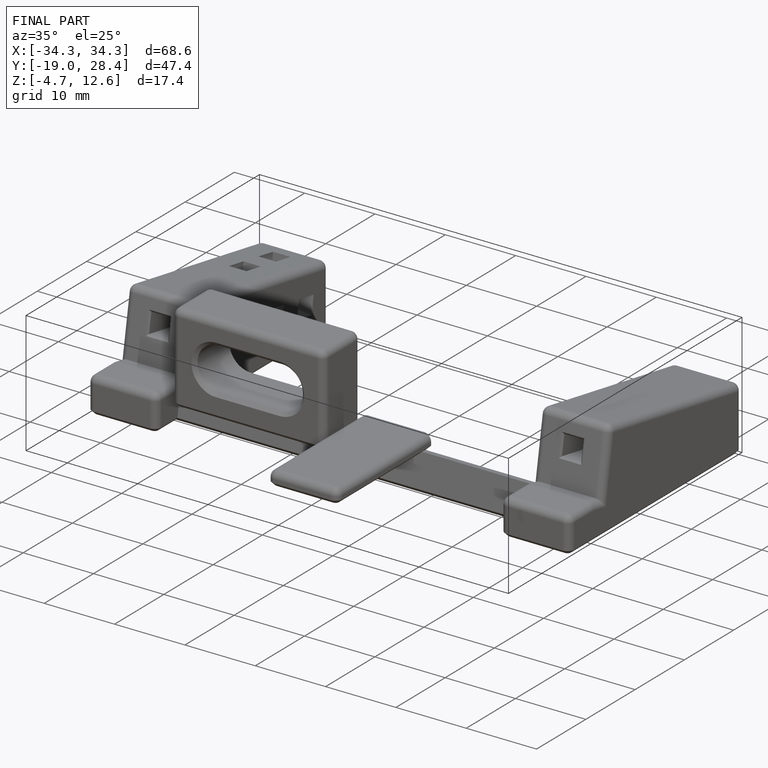
[diagram: finished part — iso view with bounding-box wireframe]
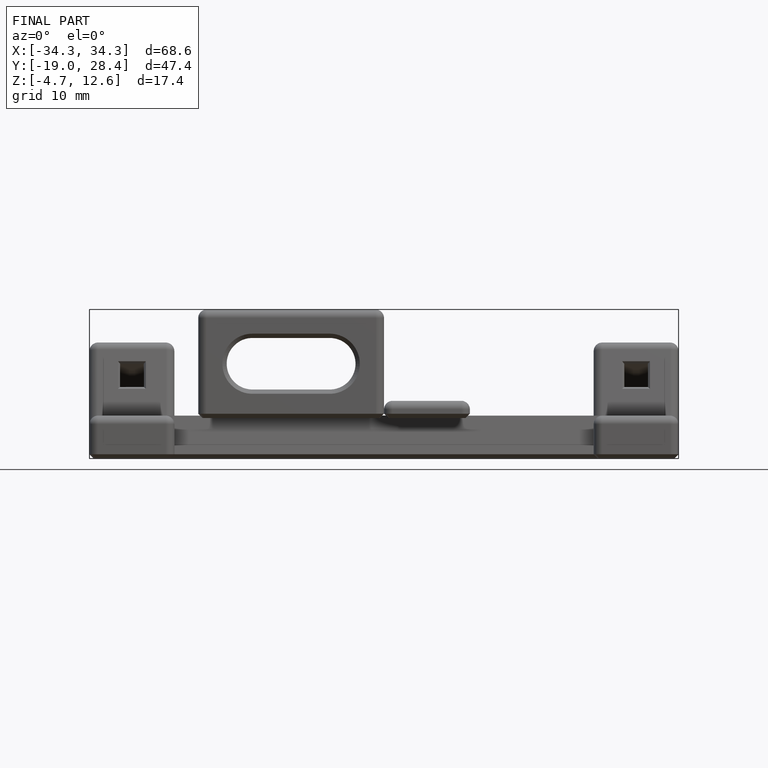
[diagram: finished part — front view with bounding-box wireframe]
